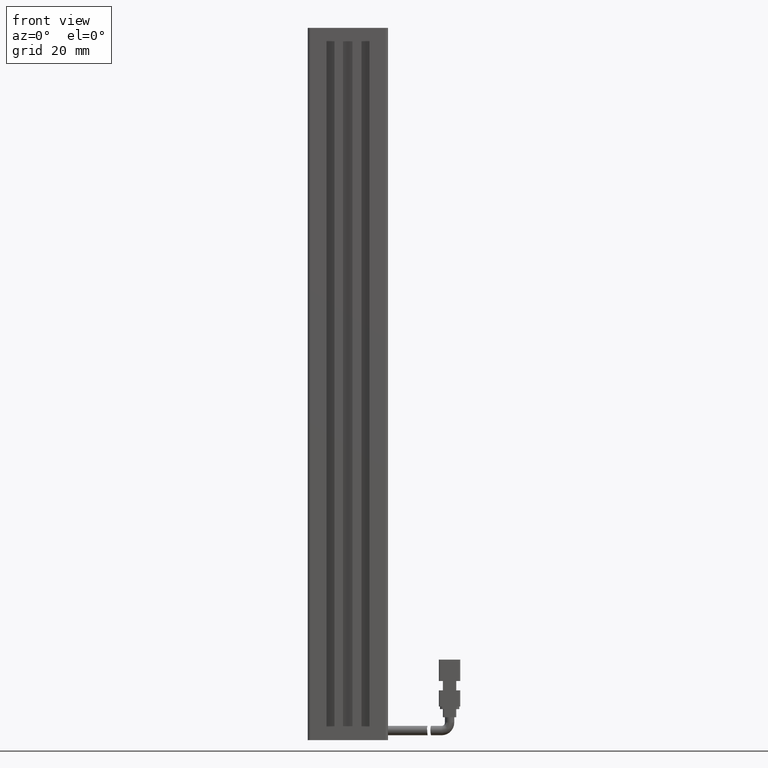
[diagram: clean part render]
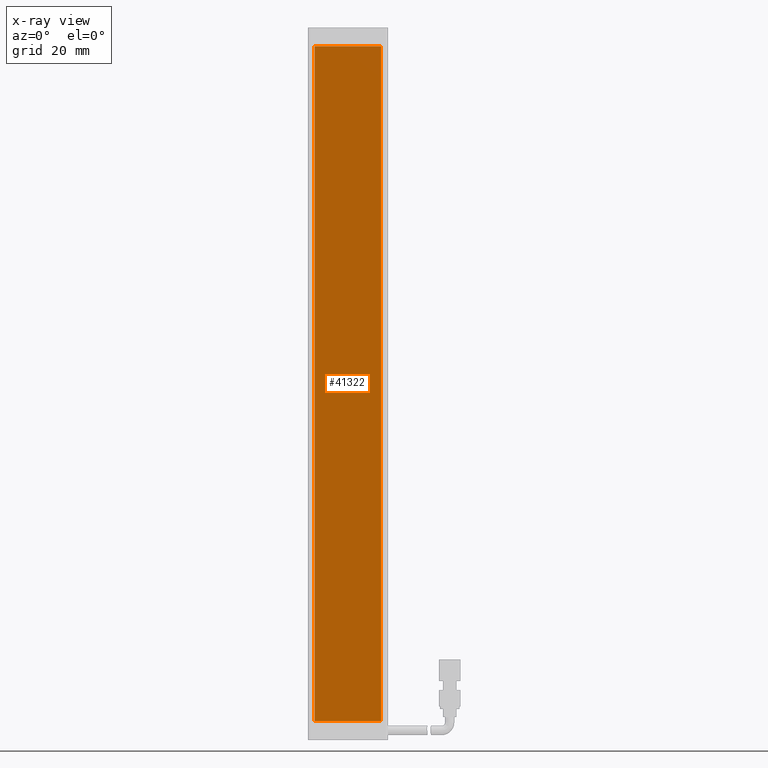
[diagram: x-ray — body ghosted, one internal face saturated and labeled with its STEP entity id]
A machine part, front view, then the same camera in x-ray: the body is ghosted and one INTERNAL B-rep face — a face not visible from any outside direction — is saturated and labeled: STEP entity #41322.
In plain terms, the highlighted planar face has unit normal (0, 1, -0).
Its self-contained STEP definition (entity closure, byte-faithful):
#1473 = LINE ( 'NONE', #50104, #22965 ) ;
#2983 = VECTOR ( 'NONE', #31510, 1000.000000000000000 ) ;
#3248 = VERTEX_POINT ( 'NONE', #26324 ) ;
#5311 = EDGE_CURVE ( 'NONE', #18356, #3248, #1473, .T. ) ;
#6647 = EDGE_CURVE ( 'NONE', #10638, #18356, #14636, .T. ) ;
#7066 = CARTESIAN_POINT ( 'NONE',  ( 40.92537974683541800, 20.19594479660386800, -114.8499999999999400 ) ) ;
#10638 = VERTEX_POINT ( 'NONE', #32852 ) ;
#11139 = DIRECTION ( 'NONE',  ( -0.0000000000000000000, -0.0000000000000000000, -1.000000000000000000 ) ) ;
#11335 = DIRECTION ( 'NONE',  ( -1.000000000000000000, 7.380418287155808400E-032, 0.0000000000000000000 ) ) ;
#11890 = CARTESIAN_POINT ( 'NONE',  ( 53.32537974683541600, 20.19594479660386800, -114.8499999999999400 ) ) ;
#14636 = LINE ( 'NONE', #11890, #24723 ) ;
#18356 = VERTEX_POINT ( 'NONE', #51482 ) ;
#22409 = ORIENTED_EDGE ( 'NONE', *, *, #6647, .F. ) ;
#22965 = VECTOR ( 'NONE', #53224, 1000.000000000000000 ) ;
#23962 = VECTOR ( 'NONE', #53425, 1000.000000000000000 ) ;
#24723 = VECTOR ( 'NONE', #11139, 1000.000000000000000 ) ;
#26324 = CARTESIAN_POINT ( 'NONE',  ( 28.52537974683541600, 20.19594479660386800, -240.8500000000000200 ) ) ;
#28941 = ORIENTED_EDGE ( 'NONE', *, *, #5311, .F. ) ;
#31510 = DIRECTION ( 'NONE',  ( 1.000000000000000000, -7.380418287155808400E-032, -0.0000000000000000000 ) ) ;
#32852 = CARTESIAN_POINT ( 'NONE',  ( 53.32537974683541600, 20.19594479660386800, 11.14999999999999300 ) ) ;
#32916 = CARTESIAN_POINT ( 'NONE',  ( 28.52537974683541600, 20.19594479660386800, 11.14999999999999300 ) ) ;
#35092 = AXIS2_PLACEMENT_3D ( 'NONE', #7066, #37035, #11335 ) ;
#36523 = ORIENTED_EDGE ( 'NONE', *, *, #54131, .F. ) ;
#36877 = FACE_OUTER_BOUND ( 'NONE', #44504, .T. ) ;
#37035 = DIRECTION ( 'NONE',  ( 7.380418287155808400E-032, 1.000000000000000000, -0.0000000000000000000 ) ) ;
#37166 = LINE ( 'NONE', #48322, #2983 ) ;
#41322 = ADVANCED_FACE ( 'NONE', ( #36877 ), #55233, .F. ) ;
#43112 = VERTEX_POINT ( 'NONE', #32916 ) ;
#44504 = EDGE_LOOP ( 'NONE', ( #51418, #28941, #22409, #36523 ) ) ;
#45373 = LINE ( 'NONE', #49193, #23962 ) ;
#48322 = CARTESIAN_POINT ( 'NONE',  ( 40.92537974683541800, 20.19594479660386800, 11.14999999999999300 ) ) ;
#49193 = CARTESIAN_POINT ( 'NONE',  ( 28.52537974683541600, 20.19594479660386800, -114.8499999999999400 ) ) ;
#50104 = CARTESIAN_POINT ( 'NONE',  ( 40.92537974683541800, 20.19594479660386800, -240.8500000000000200 ) ) ;
#51418 = ORIENTED_EDGE ( 'NONE', *, *, #53123, .F. ) ;
#51482 = CARTESIAN_POINT ( 'NONE',  ( 53.32537974683541600, 20.19594479660386800, -240.8500000000000200 ) ) ;
#53123 = EDGE_CURVE ( 'NONE', #3248, #43112, #45373, .T. ) ;
#53224 = DIRECTION ( 'NONE',  ( -1.000000000000000000, 7.380418287155808400E-032, 0.0000000000000000000 ) ) ;
#53425 = DIRECTION ( 'NONE',  ( 0.0000000000000000000, 0.0000000000000000000, 1.000000000000000000 ) ) ;
#54131 = EDGE_CURVE ( 'NONE', #43112, #10638, #37166, .T. ) ;
#55233 = PLANE ( 'NONE',  #35092 ) ;